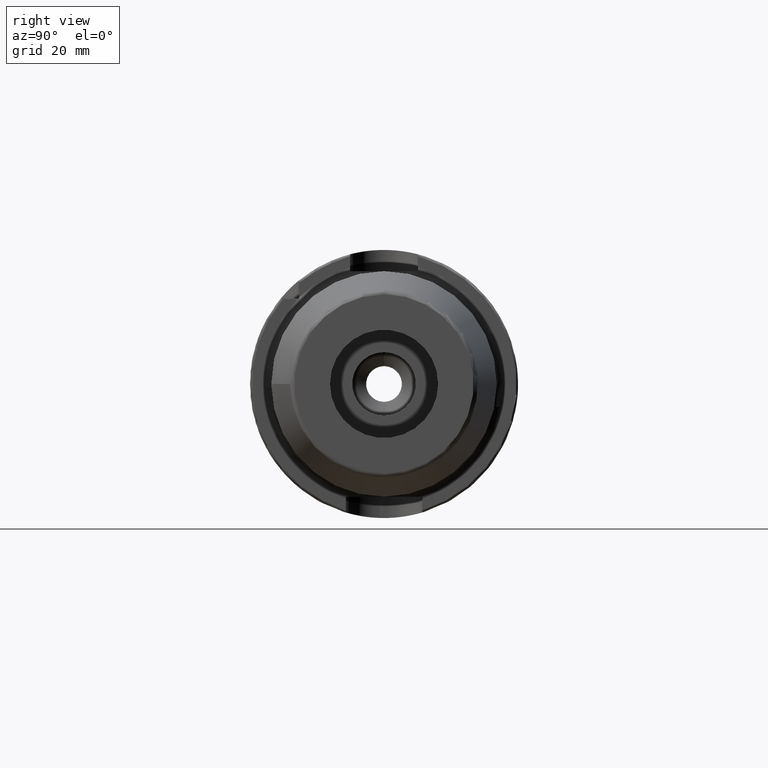
[diagram: clean part render]
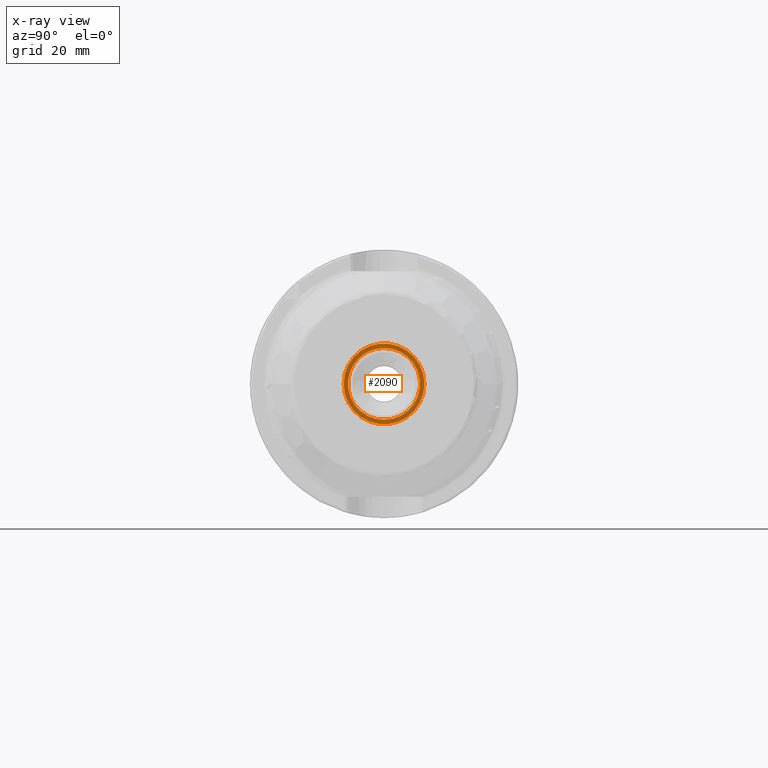
[diagram: x-ray — body ghosted, one internal face saturated and labeled with its STEP entity id]
A machine part, right view, then the same camera in x-ray: the body is ghosted and one INTERNAL B-rep face — a face not visible from any outside direction — is saturated and labeled: STEP entity #2090.
In plain terms, the highlighted planar face has unit normal (-1, 0, 0).
Its self-contained STEP definition (entity closure, byte-faithful):
#114=FACE_BOUND('',#453,.T.);
#158=PLANE('',#2349);
#326=FACE_OUTER_BOUND('',#452,.T.);
#452=EDGE_LOOP('',(#1915));
#453=EDGE_LOOP('',(#1916));
#780=CIRCLE('',#2340,8.458734);
#785=CIRCLE('',#2348,9.5);
#991=VERTEX_POINT('',#4438);
#995=VERTEX_POINT('',#4451);
#1300=EDGE_CURVE('',#991,#991,#780,.T.);
#1306=EDGE_CURVE('',#995,#995,#785,.T.);
#1915=ORIENTED_EDGE('',*,*,#1306,.F.);
#1916=ORIENTED_EDGE('',*,*,#1300,.T.);
#2090=ADVANCED_FACE('',(#326,#114),#158,.F.);
#2340=AXIS2_PLACEMENT_3D('',#4440,#2905,#2906);
#2348=AXIS2_PLACEMENT_3D('',#4453,#2922,#2923);
#2349=AXIS2_PLACEMENT_3D('',#4454,#2924,#2925);
#2905=DIRECTION('center_axis',(-1.,0.,0.));
#2906=DIRECTION('ref_axis',(0.,0.,1.));
#2922=DIRECTION('center_axis',(-1.,0.,0.));
#2923=DIRECTION('ref_axis',(0.,0.,1.));
#2924=DIRECTION('center_axis',(-1.,0.,0.));
#2925=DIRECTION('ref_axis',(0.,0.,1.));
#4438=CARTESIAN_POINT('',(17.,-1.03589615179389E-15,-8.458734));
#4440=CARTESIAN_POINT('Origin',(17.,0.,0.));
#4451=CARTESIAN_POINT('',(17.,-9.5,1.16341445918999E-15));
#4453=CARTESIAN_POINT('Origin',(17.,0.,0.));
#4454=CARTESIAN_POINT('Origin',(17.,7.5,0.));